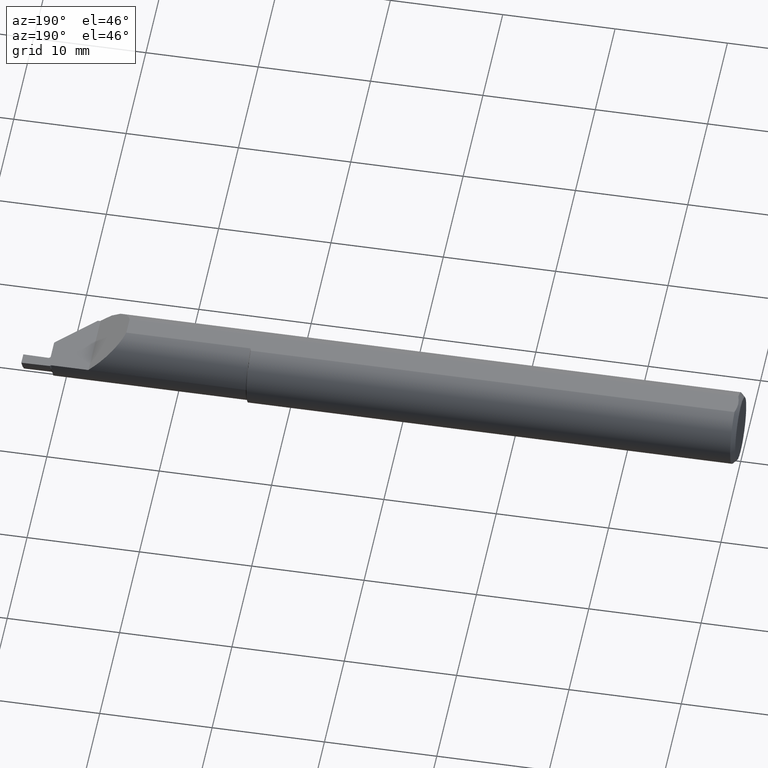
[diagram: clean part render]
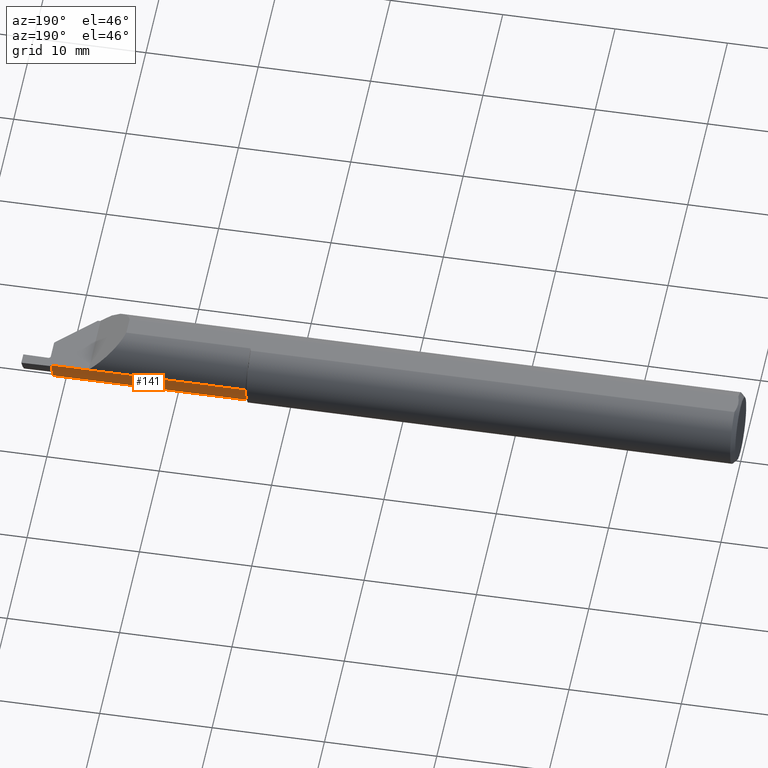
[diagram: same view with one face highlighted and labeled with its STEP entity id]
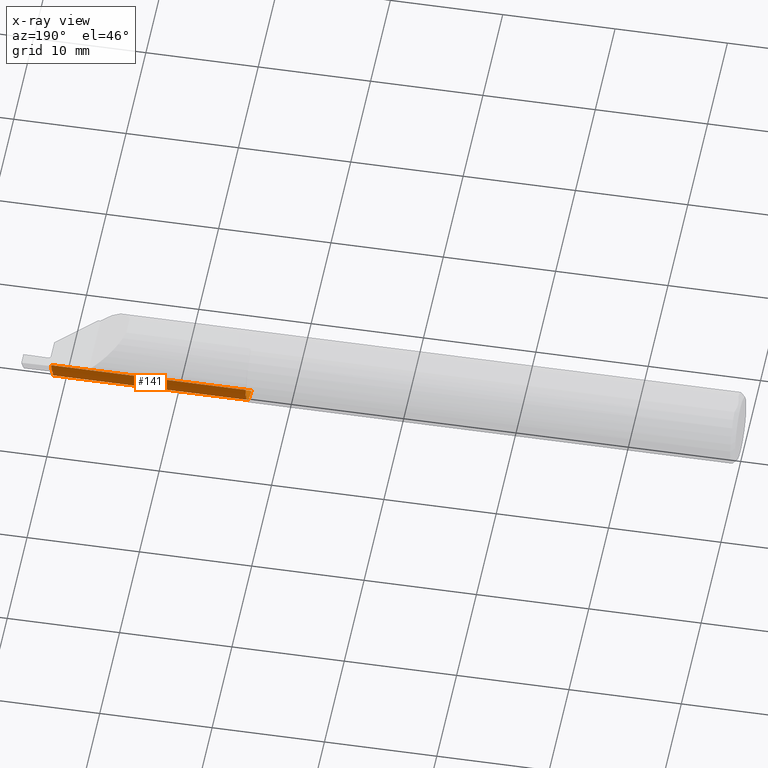
[diagram: x-ray of the same camera — body ghosted, the highlighted face saturated]
A machine part, auxiliary view. The second image highlights one B-rep face of the part: STEP entity #141.
The next image is the same camera in x-ray: the body ghosted, the highlighted face saturated — about 0% of this face is hidden behind the body in this view.
In plain terms, the highlighted cylindrical surface (edge-blend (fillet) strip) has radius 3.175 mm, axis along (1, 0, -0).
Its self-contained STEP definition (entity closure, byte-faithful):
#15 = DIRECTION ( 'NONE',  ( 1.000000000000000000, 1.113524997417498594E-16, -0.000000000000000000 ) ) ;
#20 = VECTOR ( 'NONE', #282, 39.37007874015748143 ) ;
#35 = VERTEX_POINT ( 'NONE', #448 ) ;
#39 = AXIS2_PLACEMENT_3D ( 'NONE', #835, #504, #422 ) ;
#63 = DIRECTION ( 'NONE',  ( 0.000000000000000000, 1.000000000000000000, 0.000000000000000000 ) ) ;
#99 = CARTESIAN_POINT ( 'NONE',  ( 2.399999999999999911, 0.1138492383597806412, 0.000000000000000000 ) ) ;
#123 = DIRECTION ( 'NONE',  ( 0.000000000000000000, 1.000000000000000000, 0.000000000000000000 ) ) ;
#125 = AXIS2_PLACEMENT_3D ( 'NONE', #566, #820, #63 ) ;
#140 = VECTOR ( 'NONE', #15, 39.37007874015748143 ) ;
#141 = ADVANCED_FACE ( 'NONE', ( #463 ), #333, .T. ) ;
#165 = CARTESIAN_POINT ( 'NONE',  ( 2.393544250148883723, 0.1096411237135893474, -0.03234777159303669353 ) ) ;
#174 = ORIENTED_EDGE ( 'NONE', *, *, #339, .F. ) ;
#182 = CARTESIAN_POINT ( 'NONE',  ( 2.395000000000000018, 0.1111817981856617066, -0.02568549797935074791 ) ) ;
#217 = ORIENTED_EDGE ( 'NONE', *, *, #494, .T. ) ;
#241 = VERTEX_POINT ( 'NONE', #739 ) ;
#279 =( BOUNDED_CURVE ( )  B_SPLINE_CURVE ( 3, ( #533, #313, #522, #388 ),
 .UNSPECIFIED., .F., .F. ) 
 B_SPLINE_CURVE_WITH_KNOTS ( ( 4, 4 ),
 ( 1.628875945332859176, 2.768961487535409383 ),
 .UNSPECIFIED. ) 
 CURVE ( )  GEOMETRIC_REPRESENTATION_ITEM ( )  RATIONAL_B_SPLINE_CURVE ( ( 1.000000000000000000, 0.8945852624901299288, 0.8945852624901299288, 1.000000000000000000 ) ) 
 REPRESENTATION_ITEM ( '' )  );
#282 = DIRECTION ( 'NONE',  ( 1.000000000000000000, 1.113524997417498594E-16, -0.000000000000000000 ) ) ;
#309 = CARTESIAN_POINT ( 'NONE',  ( 2.392923790597901501, 0.1076590066416639874, -0.03900380564980964609 ) ) ;
#311 = LINE ( 'NONE', #318, #140 ) ;
#313 = CARTESIAN_POINT ( 'NONE',  ( 2.393854858637863625, 0.04629206233410948501, -0.1218711106522970544 ) ) ;
#318 = CARTESIAN_POINT ( 'NONE',  ( 2.399999999999999911, 0.1138492383597806412, 0.000000000000000000 ) ) ;
#322 = EDGE_CURVE ( 'NONE', #853, #849, #632, .T. ) ;
#333 = CYLINDRICAL_SURFACE ( 'NONE', #669, 0.1250000000000000555 ) ;
#339 = EDGE_CURVE ( 'NONE', #864, #404, #697, .T. ) ;
#352 = EDGE_CURVE ( 'NONE', #864, #241, #507, .T. ) ;
#357 = VECTOR ( 'NONE', #515, 39.37007874015748143 ) ;
#361 = ORIENTED_EDGE ( 'NONE', *, *, #657, .F. ) ;
#363 = ORIENTED_EDGE ( 'NONE', *, *, #322, .F. ) ;
#367 = LINE ( 'NONE', #99, #357 ) ;
#388 = CARTESIAN_POINT ( 'NONE',  ( 2.392825380602001228, 0.1052708195084156445, -0.04550841068255186139 ) ) ;
#404 = VERTEX_POINT ( 'NONE', #654 ) ;
#422 = DIRECTION ( 'NONE',  ( 0.000000000000000000, 1.000000000000000000, 0.000000000000000000 ) ) ;
#425 = VERTEX_POINT ( 'NONE', #660 ) ;
#448 = CARTESIAN_POINT ( 'NONE',  ( 2.265000000000000124, 0.1138492383597806273, 0.000000000000000000 ) ) ;
#463 = FACE_OUTER_BOUND ( 'NONE', #713, .T. ) ;
#478 = DIRECTION ( 'NONE',  ( 1.000000000000000000, 1.113524997417498594E-16, -0.000000000000000000 ) ) ;
#494 = EDGE_CURVE ( 'NONE', #241, #35, #311, .T. ) ;
#498 = B_SPLINE_CURVE_WITH_KNOTS ( 'NONE', 3,
 ( #658, #782, #309, #165, #651, #182 ),
 .UNSPECIFIED., .F., .F.,
 ( 4, 2, 4 ),
 ( 0.0005087266238303171911, 0.0007742710766510624374, 0.001039815529471807467 ),
 .UNSPECIFIED. ) ;
#504 = DIRECTION ( 'NONE',  ( 1.000000000000000000, 1.113524997417498594E-16, -0.000000000000000000 ) ) ;
#507 = CIRCLE ( 'NONE', #39, 0.1250000000000000000 ) ;
#515 = DIRECTION ( 'NONE',  ( -1.000000000000000000, -1.113524997417498594E-16, 0.000000000000000000 ) ) ;
#516 = ORIENTED_EDGE ( 'NONE', *, *, #613, .F. ) ;
#522 = CARTESIAN_POINT ( 'NONE',  ( 2.393144848226213650, 0.08696853157502007492, -0.09233011392125553551 ) ) ;
#533 = CARTESIAN_POINT ( 'NONE',  ( 2.394730875153431526, -0.003894890230739353216, -0.1247892316271311808 ) ) ;
#548 = CARTESIAN_POINT ( 'NONE',  ( 2.395000000000000018, 0.1111817981856617066, -0.02568549797935074791 ) ) ;
#550 = ORIENTED_EDGE ( 'NONE', *, *, #352, .T. ) ;
#557 = CARTESIAN_POINT ( 'NONE',  ( 2.395000000000000018, 0.1138492383597806967, 0.000000000000000000 ) ) ;
#561 = CARTESIAN_POINT ( 'NONE',  ( 2.055000000000000160, -0.003894890230801667085, -0.1247892316271320134 ) ) ;
#566 = CARTESIAN_POINT ( 'NONE',  ( 2.395000000000000018, -0.01115076164021940562, 0.000000000000000000 ) ) ;
#613 = EDGE_CURVE ( 'NONE', #404, #425, #279, .T. ) ;
#632 = CIRCLE ( 'NONE', #125, 0.1250000000000001110 ) ;
#636 = EDGE_CURVE ( 'NONE', #425, #853, #498, .T. ) ;
#651 = CARTESIAN_POINT ( 'NONE',  ( 2.393966611449567239, 0.1104923062364803754, -0.02896934769059624631 ) ) ;
#654 = CARTESIAN_POINT ( 'NONE',  ( 2.394730875153431526, -0.003894890230739353216, -0.1247892316271311808 ) ) ;
#657 = EDGE_CURVE ( 'NONE', #849, #35, #367, .T. ) ;
#658 = CARTESIAN_POINT ( 'NONE',  ( 2.392825380602001228, 0.1052708195084156445, -0.04550841068255186139 ) ) ;
#660 = CARTESIAN_POINT ( 'NONE',  ( 2.392825380602001228, 0.1052708195084156445, -0.04550841068255186139 ) ) ;
#669 = AXIS2_PLACEMENT_3D ( 'NONE', #736, #478, #123 ) ;
#697 = LINE ( 'NONE', #561, #20 ) ;
#713 = EDGE_LOOP ( 'NONE', ( #550, #217, #361, #363, #722, #516, #174 ) ) ;
#722 = ORIENTED_EDGE ( 'NONE', *, *, #636, .F. ) ;
#736 = CARTESIAN_POINT ( 'NONE',  ( 2.399999999999999911, -0.01115076164021940562, 0.000000000000000000 ) ) ;
#739 = CARTESIAN_POINT ( 'NONE',  ( 1.715000000000000080, 0.1138492383597805441, 0.000000000000000000 ) ) ;
#751 = CARTESIAN_POINT ( 'NONE',  ( 1.715000000000000080, -0.003894890230802756925, -0.1247892316271320273 ) ) ;
#782 = CARTESIAN_POINT ( 'NONE',  ( 2.392803361869175749, 0.1065322718671275343, -0.04228130879210459381 ) ) ;
#820 = DIRECTION ( 'NONE',  ( 1.000000000000000000, 1.113524997417498594E-16, -0.000000000000000000 ) ) ;
#835 = CARTESIAN_POINT ( 'NONE',  ( 1.715000000000000080, -0.01115076164021948195, 0.000000000000000000 ) ) ;
#849 = VERTEX_POINT ( 'NONE', #557 ) ;
#853 = VERTEX_POINT ( 'NONE', #548 ) ;
#864 = VERTEX_POINT ( 'NONE', #751 ) ;